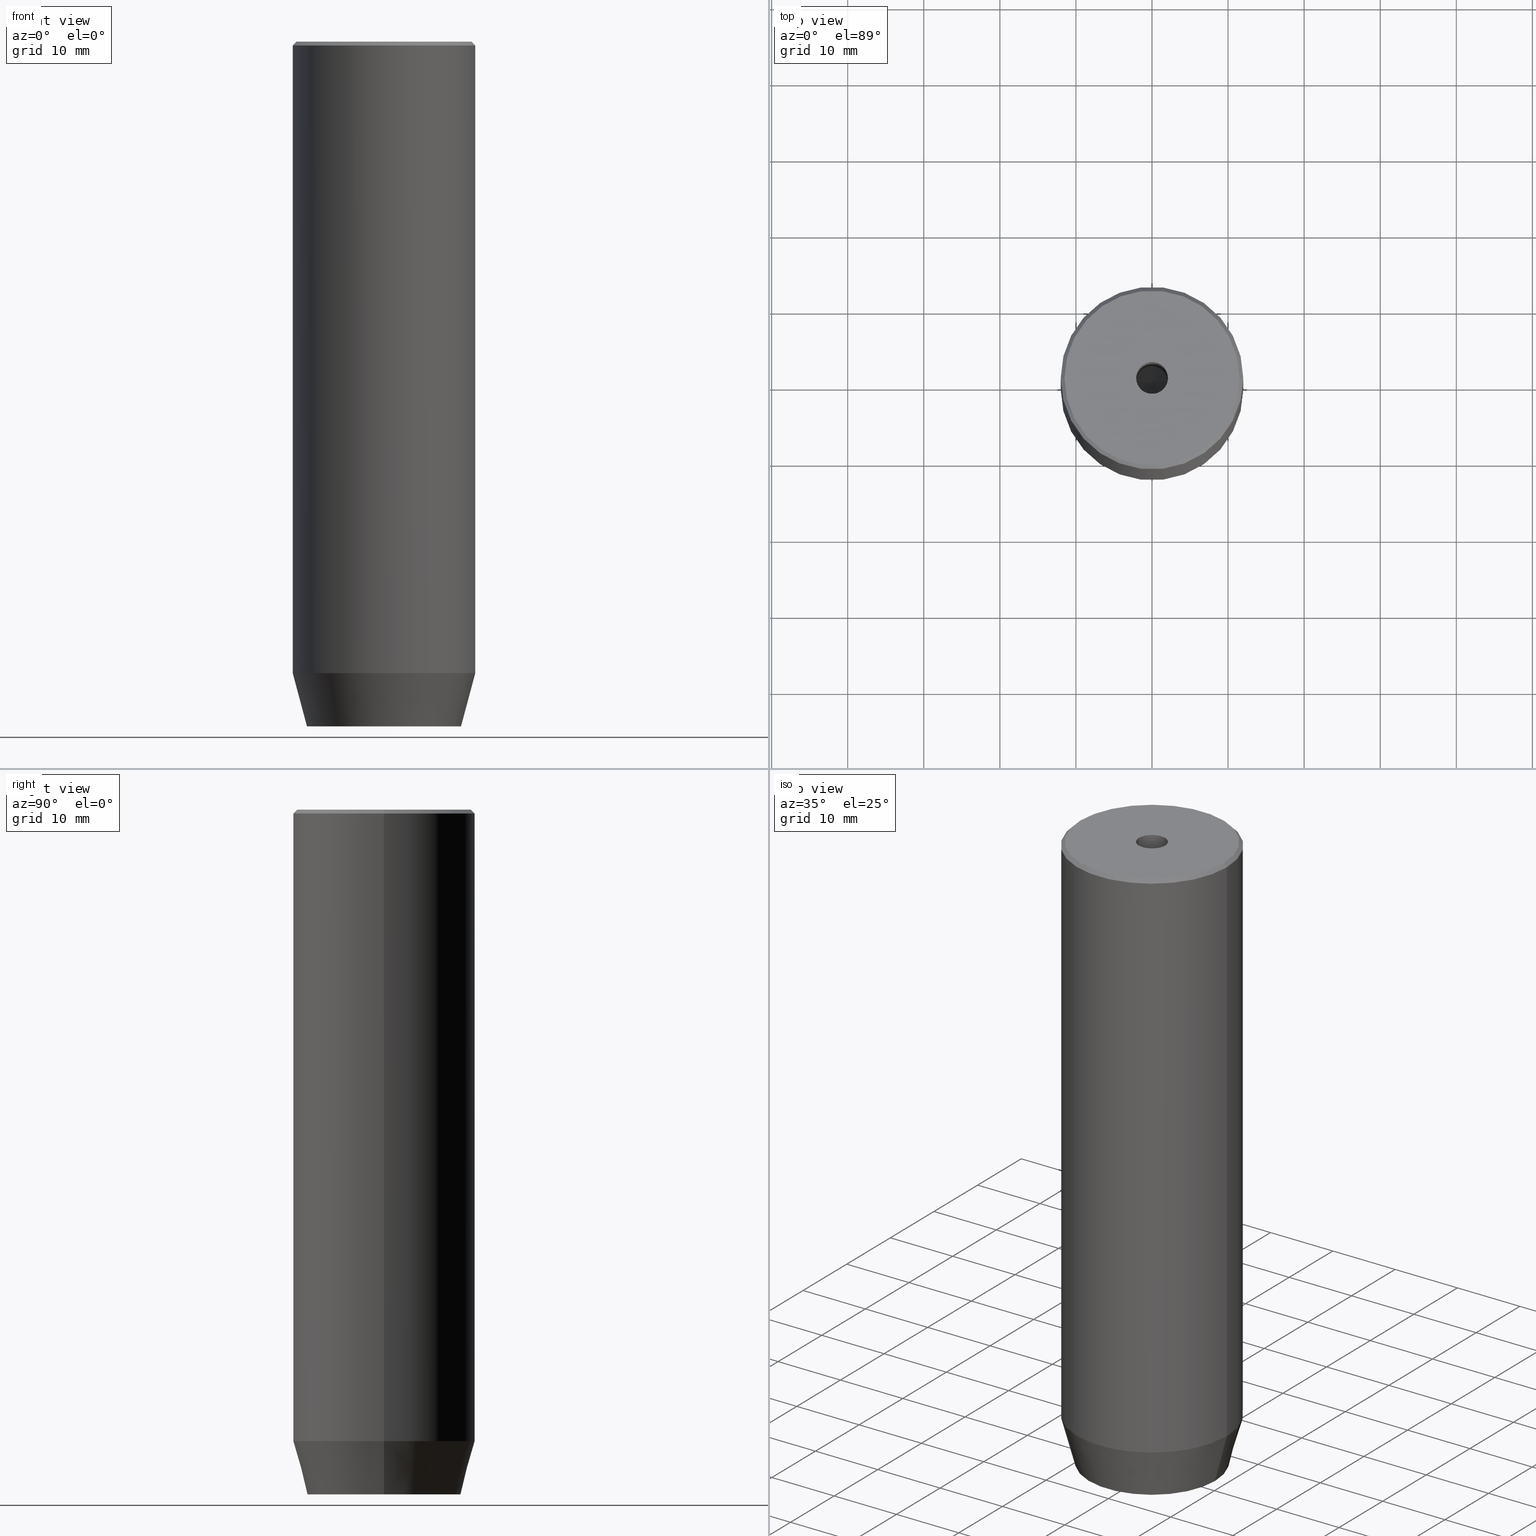
[diagram: canonical four-view strip — front | top / right | iso, engineering-drawing reading convention]
A machine part, canonical four-view strip (front | top / right | iso — engineering-drawing reading convention). The complete STEP part file that produces these views, byte-faithful:
ISO-10303-21;
HEADER;
FILE_DESCRIPTION (( 'STEP AP203' ),
    '1' );
FILE_NAME ('51a4.STEP',
    '2024-01-02T17:16:26',
    ( '' ),
    ( '' ),
    'SwSTEP 2.0',
    'SolidWorks 2019',
    '' );
FILE_SCHEMA (( 'CONFIG_CONTROL_DESIGN' ));
ENDSEC;

DATA;
#1 = DIRECTION ( 'NONE',  ( 1.000000000000000000, 0.000000000000000000, 0.000000000000000000 ) ) ;
#2 = EDGE_LOOP ( 'NONE', ( #536, #222, #529, #100 ) ) ;
#3 = CIRCLE ( 'NONE', #467, 11.49999999999999467 ) ;
#4 = VECTOR ( 'NONE', #300, 1000.000000000000000 ) ;
#5 = COORDINATED_UNIVERSAL_TIME_OFFSET ( 1, 0, .AHEAD. ) ;
#6 = ORIENTED_EDGE ( 'NONE', *, *, #497, .F. ) ;
#7 = ADVANCED_FACE ( 'NONE', ( #328, #155 ), #246, .T. ) ;
#8 = DIRECTION ( 'NONE',  ( 1.000000000000000000, 0.000000000000000000, 0.000000000000000000 ) ) ;
#9 = SECURITY_CLASSIFICATION_LEVEL ( 'unclassified' ) ;
#10 = VECTOR ( 'NONE', #115, 1000.000000000000114 ) ;
#11 = CONICAL_SURFACE ( 'NONE', #476, 12.00000000000000000, 0.2617993877991500740 ) ;
#12 = PERSON_AND_ORGANIZATION ( #371, #394 ) ;
#13 = EDGE_CURVE ( 'NONE', #583, #310, #120, .T. ) ;
#14 = CARTESIAN_POINT ( 'NONE',  ( 4.000000000000000000, -2.309401076758502480, -87.20000000000000284 ) ) ;
#15 = CARTESIAN_POINT ( 'NONE',  ( 4.000000000000000000, 0.000000000000000000, -90.00000000000000000 ) ) ;
#16 = DIRECTION ( 'NONE',  ( 0.000000000000000000, 0.000000000000000000, -1.000000000000000000 ) ) ;
#17 = CARTESIAN_POINT ( 'NONE',  ( -2.000000000000000000, 3.464101615137754830, -87.20000000000000284 ) ) ;
#18 = CIRCLE ( 'NONE', #284, 10.12435565298213547 ) ;
#19 = DIRECTION ( 'NONE',  ( -0.000000000000000000, -0.000000000000000000, 1.000000000000000000 ) ) ;
#20 = CARTESIAN_POINT ( 'NONE',  ( 0.000000000000000000, 10.12435565298213547, -90.00000000000000000 ) ) ;
#21 = CC_DESIGN_APPROVAL ( #280, ( #507 ) ) ;
#22 = EDGE_CURVE ( 'NONE', #234, #440, #547, .T. ) ;
#23 = FACE_OUTER_BOUND ( 'NONE', #443, .T. ) ;
#24 = ORIENTED_EDGE ( 'NONE', *, *, #466, .F. ) ;
#25 = DIRECTION ( 'NONE',  ( -1.000000000000000000, 0.000000000000000000, -0.000000000000000000 ) ) ;
#26 = CARTESIAN_POINT ( 'NONE',  ( 12.00000000000000000, 0.000000000000000000, 0.000000000000000000 ) ) ;
#27 = ORIENTED_EDGE ( 'NONE', *, *, #505, .F. ) ;
#28 = CARTESIAN_POINT ( 'NONE',  ( -10.12435565298213547, 1.354726066681111050E-15, -90.00000000000000000 ) ) ;
#29 =( NAMED_UNIT ( * ) SI_UNIT ( $, .STERADIAN. ) SOLID_ANGLE_UNIT ( ) );
#30 = AXIS2_PLACEMENT_3D ( 'NONE', #285, #470, #517 ) ;
#31 = ORIENTED_EDGE ( 'NONE', *, *, #381, .T. ) ;
#32 = EDGE_CURVE ( 'NONE', #432, #147, #149, .T. ) ;
#33 = DIRECTION ( 'NONE',  ( -0.000000000000000000, -0.000000000000000000, 1.000000000000000000 ) ) ;
#34 = LINE ( 'NONE', #581, #204 ) ;
#35 = LOCAL_TIME ( 18, 16, 26.00000000000000000, #499 ) ;
#36 = ORIENTED_EDGE ( 'NONE', *, *, #445, .F. ) ;
#37 = CARTESIAN_POINT ( 'NONE',  ( 2.099999999999994760, 0.000000000000000000, -30.00000000000000000 ) ) ;
#38 = FACE_OUTER_BOUND ( 'NONE', #323, .T. ) ;
#39 = EDGE_LOOP ( 'NONE', ( #526, #498, #96, #42, #451, #587 ) ) ;
#40 = FACE_OUTER_BOUND ( 'NONE', #78, .T. ) ;
#41 = CARTESIAN_POINT ( 'NONE',  ( 0.000000000000000000, 0.000000000000000000, -30.00000000000000000 ) ) ;
#42 = ORIENTED_EDGE ( 'NONE', *, *, #46, .F. ) ;
#43 = CIRCLE ( 'NONE', #317, 10.12435565298213547 ) ;
#44 = CARTESIAN_POINT ( 'NONE',  ( -4.000000000000000000, -2.309401076758503368, -87.20000000000000284 ) ) ;
#45 =( NAMED_UNIT ( * ) PLANE_ANGLE_UNIT ( ) SI_UNIT ( $, .RADIAN. ) );
#46 = EDGE_CURVE ( 'NONE', #310, #357, #335, .T. ) ;
#47 = EDGE_LOOP ( 'NONE', ( #545, #31, #189, #119 ) ) ;
#48 = CARTESIAN_POINT ( 'NONE',  ( -2.000000000000000888, -3.464101615137754386, -87.20000000000000284 ) ) ;
#49 = APPROVAL_DATE_TIME ( #453, #522 ) ;
#50 = ADVANCED_BREP_SHAPE_REPRESENTATION ( '51a4', ( #508, #123 ), #375 ) ;
#51 = ORIENTED_EDGE ( 'NONE', *, *, #347, .F. ) ;
#52 = COORDINATED_UNIVERSAL_TIME_OFFSET ( 1, 0, .AHEAD. ) ;
#53 = VERTEX_POINT ( 'NONE', #124 ) ;
#54 = CIRCLE ( 'NONE', #212, 2.099999999999998757 ) ;
#55 = EDGE_CURVE ( 'NONE', #365, #440, #419, .T. ) ;
#56 = AXIS2_PLACEMENT_3D ( 'NONE', #287, #552, #342 ) ;
#57 = APPROVAL_DATE_TIME ( #105, #280 ) ;
#58 = DIRECTION ( 'NONE',  ( -0.8660254037844384856, 0.5000000000000002220, 0.000000000000000000 ) ) ;
#59 = EDGE_CURVE ( 'NONE', #341, #234, #3, .T. ) ;
#60 = EDGE_CURVE ( 'NONE', #166, #579, #112, .T. ) ;
#61 = AXIS2_PLACEMENT_3D ( 'NONE', #279, #380, #553 ) ;
#62 = CIRCLE ( 'NONE', #30, 12.00000000000000000 ) ;
#63 = CARTESIAN_POINT ( 'NONE',  ( 4.336808689942017736E-16, -4.618802153517006737, -87.20000000000000284 ) ) ;
#64 = CARTESIAN_POINT ( 'NONE',  ( -12.00000000000000000, 1.469576158976823947E-15, -82.99999999999998579 ) ) ;
#65 = CYLINDRICAL_SURFACE ( 'NONE', #200, 12.00000000000000000 ) ;
#66 = CARTESIAN_POINT ( 'NONE',  ( 0.000000000000000000, 0.000000000000000000, 0.000000000000000000 ) ) ;
#67 = CARTESIAN_POINT ( 'NONE',  ( 0.000000000000000000, 0.000000000000000000, -90.00000000000000000 ) ) ;
#68 = EDGE_CURVE ( 'NONE', #53, #102, #504, .T. ) ;
#69 = VECTOR ( 'NONE', #519, 1000.000000000000000 ) ;
#70 = FACE_OUTER_BOUND ( 'NONE', #131, .T. ) ;
#71 = AXIS2_PLACEMENT_3D ( 'NONE', #223, #359, #535 ) ;
#72 = CARTESIAN_POINT ( 'NONE',  ( 2.099999999999996980, 0.000000000000000000, 0.000000000000000000 ) ) ;
#73 = EDGE_LOOP ( 'NONE', ( #36, #423, #393 ) ) ;
#74 = CC_DESIGN_APPROVAL ( #522, ( #544 ) ) ;
#75 = CC_DESIGN_PERSON_AND_ORGANIZATION_ASSIGNMENT ( #372, #143, ( #507 ) ) ;
#76 = DIRECTION ( 'NONE',  ( 0.000000000000000000, 0.000000000000000000, -1.000000000000000000 ) ) ;
#77 = PLANE ( 'NONE',  #555 ) ;
#78 = EDGE_LOOP ( 'NONE', ( #299, #256, #286, #368 ) ) ;
#79 = DIRECTION ( 'NONE',  ( -0.000000000000000000, -0.000000000000000000, 1.000000000000000000 ) ) ;
#80 = PLANE ( 'NONE',  #421 ) ;
#81 = EDGE_CURVE ( 'NONE', #147, #273, #208, .T. ) ;
#82 = ORIENTED_EDGE ( 'NONE', *, *, #534, .F. ) ;
#83 = DIRECTION ( 'NONE',  ( 1.000000000000000000, 0.000000000000000000, 0.000000000000000000 ) ) ;
#84 = DIRECTION ( 'NONE',  ( -0.000000000000000000, -0.000000000000000000, 1.000000000000000000 ) ) ;
#85 = AXIS2_PLACEMENT_3D ( 'NONE', #441, #79, #83 ) ;
#86 = CIRCLE ( 'NONE', #269, 2.099999999999994760 ) ;
#87 = ORIENTED_EDGE ( 'NONE', *, *, #548, .T. ) ;
#88 = DIRECTION ( 'NONE',  ( 1.000000000000000000, 0.000000000000000000, 0.000000000000000000 ) ) ;
#89 = DIRECTION ( 'NONE',  ( -0.000000000000000000, -0.000000000000000000, 1.000000000000000000 ) ) ;
#90 = VERTEX_POINT ( 'NONE', #64 ) ;
#91 = CARTESIAN_POINT ( 'NONE',  ( 2.000000000000000888, -3.464101615137754386, -87.20000000000000284 ) ) ;
#92 = ORIENTED_EDGE ( 'NONE', *, *, #324, .T. ) ;
#93 = DIRECTION ( 'NONE',  ( 1.000000000000000000, 0.000000000000000000, 0.000000000000000000 ) ) ;
#94 = ADVANCED_FACE ( 'NONE', ( #70 ), #387, .F. ) ;
#95 = CARTESIAN_POINT ( 'NONE',  ( 4.000000000000000000, 2.309401076758503368, -90.00000000000000000 ) ) ;
#96 = ORIENTED_EDGE ( 'NONE', *, *, #563, .F. ) ;
#97 = AXIS2_PLACEMENT_3D ( 'NONE', #573, #171, #350 ) ;
#98 = FACE_OUTER_BOUND ( 'NONE', #524, .T. ) ;
#99 = CALENDAR_DATE ( 2024, 2, 1 ) ;
#100 = ORIENTED_EDGE ( 'NONE', *, *, #144, .T. ) ;
#101 = SHAPE_DEFINITION_REPRESENTATION ( #319, #50 ) ;
#102 = VERTEX_POINT ( 'NONE', #244 ) ;
#103 = EDGE_CURVE ( 'NONE', #203, #53, #472, .T. ) ;
#104 = EDGE_LOOP ( 'NONE', ( #572, #488, #322, #493 ) ) ;
#105 = DATE_AND_TIME ( #109, #278 ) ;
#106 = DIRECTION ( 'NONE',  ( -0.000000000000000000, -0.000000000000000000, -1.000000000000000000 ) ) ;
#107 = PRODUCT_DEFINITION_FORMATION_WITH_SPECIFIED_SOURCE ( 'LIBOVOLN�', '', #307, .NOT_KNOWN. ) ;
#108 = EDGE_CURVE ( 'NONE', #447, #432, #429, .T. ) ;
#109 = CALENDAR_DATE ( 2024, 2, 1 ) ;
#110 = APPLICATION_CONTEXT ( 'configuration controlled 3d designs of mechanical parts and assemblies' ) ;
#111 = DIRECTION ( 'NONE',  ( -1.000000000000000000, 0.000000000000000000, -0.000000000000000000 ) ) ;
#112 = CIRCLE ( 'NONE', #567, 2.099999999999998757 ) ;
#113 = VECTOR ( 'NONE', #175, 1000.000000000000000 ) ;
#114 = CARTESIAN_POINT ( 'NONE',  ( -2.099999999999994760, 2.571758278209435054E-16, -30.00000000000000000 ) ) ;
#115 = DIRECTION ( 'NONE',  ( -0.8660254037844384856, -0.5000000000000002220, 0.000000000000000000 ) ) ;
#116 = CARTESIAN_POINT ( 'NONE',  ( 11.49999999999999467, 1.408343819019455584E-15, 0.000000000000000000 ) ) ;
#117 = DIRECTION ( 'NONE',  ( -0.8660254037844384856, -0.5000000000000002220, 0.000000000000000000 ) ) ;
#118 = LINE ( 'NONE', #427, #568 ) ;
#119 = ORIENTED_EDGE ( 'NONE', *, *, #510, .F. ) ;
#120 = LINE ( 'NONE', #15, #69 ) ;
#121 = CIRCLE ( 'NONE', #448, 12.00000000000000000 ) ;
#122 = LINE ( 'NONE', #72, #240 ) ;
#123 = AXIS2_PLACEMENT_3D ( 'NONE', #321, #360, #277 ) ;
#124 = CARTESIAN_POINT ( 'NONE',  ( 0.000000000000000000, 4.618802153517006737, -87.20000000000000284 ) ) ;
#125 = EDGE_CURVE ( 'NONE', #219, #166, #288, .T. ) ;
#126 = APPLICATION_PROTOCOL_DEFINITION ( 'international standard', 'config_control_design', 1994, #565 ) ;
#127 = CARTESIAN_POINT ( 'NONE',  ( -12.00000000000000000, 1.469576158976823947E-15, -82.99999999999998579 ) ) ;
#128 = CARTESIAN_POINT ( 'NONE',  ( 0.000000000000000000, 0.000000000000000000, -0.5000000000000056621 ) ) ;
#129 = CARTESIAN_POINT ( 'NONE',  ( 0.000000000000000000, 0.000000000000000000, -82.99999999999998579 ) ) ;
#130 = CIRCLE ( 'NONE', #461, 11.49999999999999467 ) ;
#131 = EDGE_LOOP ( 'NONE', ( #182, #457, #163, #501 ) ) ;
#132 = CARTESIAN_POINT ( 'NONE',  ( 0.000000000000000000, 0.000000000000000000, -30.00000000000000000 ) ) ;
#133 = DIRECTION ( 'NONE',  ( 1.000000000000000000, 0.000000000000000000, 0.000000000000000000 ) ) ;
#134 = EDGE_LOOP ( 'NONE', ( #404, #205, #146, #87 ) ) ;
#135 = CARTESIAN_POINT ( 'NONE',  ( 2.000000000000000444, 3.464101615137754386, -87.20000000000000284 ) ) ;
#136 = LINE ( 'NONE', #215, #113 ) ;
#137 = ORIENTED_EDGE ( 'NONE', *, *, #60, .F. ) ;
#138 = EDGE_CURVE ( 'NONE', #219, #229, #186, .T. ) ;
#139 = DIRECTION ( 'NONE',  ( 0.8660254037844384856, -0.5000000000000002220, 0.000000000000000000 ) ) ;
#140 = APPROVAL_STATUS ( 'not_yet_approved' ) ;
#141 = EDGE_LOOP ( 'NONE', ( #216, #275, #318, #353 ) ) ;
#142 = VECTOR ( 'NONE', #483, 1000.000000000000000 ) ;
#143 = PERSON_AND_ORGANIZATION_ROLE ( 'creator' ) ;
#144 = EDGE_CURVE ( 'NONE', #579, #166, #54, .T. ) ;
#145 = UNCERTAINTY_MEASURE_WITH_UNIT (LENGTH_MEASURE( 1.000000000000000082E-05 ), #356, 'distance_accuracy_value', 'NONE');
#146 = ORIENTED_EDGE ( 'NONE', *, *, #108, .F. ) ;
#147 = VERTEX_POINT ( 'NONE', #44 ) ;
#148 = PERSON_AND_ORGANIZATION ( #371, #394 ) ;
#149 = LINE ( 'NONE', #293, #302 ) ;
#150 = VECTOR ( 'NONE', #424, 1000.000000000000000 ) ;
#151 = ADVANCED_FACE ( 'NONE', ( #577 ), #509, .F. ) ;
#152 = FACE_OUTER_BOUND ( 'NONE', #232, .T. ) ;
#153 = AXIS2_PLACEMENT_3D ( 'NONE', #20, #564, #25 ) ;
#154 = AXIS2_PLACEMENT_3D ( 'NONE', #575, #221, #571 ) ;
#155 = FACE_OUTER_BOUND ( 'NONE', #518, .T. ) ;
#156 = EDGE_CURVE ( 'NONE', #273, #478, #585, .T. ) ;
#157 = CARTESIAN_POINT ( 'NONE',  ( 4.000000000000000000, 0.000000000000000000, -87.20000000000000284 ) ) ;
#158 = DIRECTION ( 'NONE',  ( -0.000000000000000000, -0.000000000000000000, -1.000000000000000000 ) ) ;
#159 = CARTESIAN_POINT ( 'NONE',  ( 0.000000000000000000, 0.000000000000000000, 0.000000000000000000 ) ) ;
#160 = ORIENTED_EDGE ( 'NONE', *, *, #243, .F. ) ;
#161 = DIRECTION ( 'NONE',  ( 0.8660254037844387076, 0.5000000000000001110, 0.000000000000000000 ) ) ;
#162 = EDGE_CURVE ( 'NONE', #295, #583, #267, .T. ) ;
#163 = ORIENTED_EDGE ( 'NONE', *, *, #230, .F. ) ;
#164 = VECTOR ( 'NONE', #206, 1000.000000000000000 ) ;
#165 = LINE ( 'NONE', #157, #364 ) ;
#166 = VERTEX_POINT ( 'NONE', #580 ) ;
#167 = CC_DESIGN_DATE_AND_TIME_ASSIGNMENT ( #546, #496, ( #544 ) ) ;
#168 = LOCAL_TIME ( 18, 16, 26.00000000000000000, #52 ) ;
#169 = CARTESIAN_POINT ( 'NONE',  ( -4.000000000000000000, 2.309401076758503368, -87.20000000000000284 ) ) ;
#170 = FACE_BOUND ( 'NONE', #437, .T. ) ;
#171 = DIRECTION ( 'NONE',  ( 1.000000000000000000, 0.000000000000000000, -0.000000000000000000 ) ) ;
#172 = DIRECTION ( 'NONE',  ( -1.000000000000000000, 0.000000000000000000, 0.000000000000000000 ) ) ;
#173 = EDGE_LOOP ( 'NONE', ( #51, #24, #385, #491 ) ) ;
#174 = DIRECTION ( 'NONE',  ( 1.000000000000000000, 0.000000000000000000, 0.000000000000000000 ) ) ;
#175 = DIRECTION ( 'NONE',  ( 0.000000000000000000, 1.000000000000000000, 0.000000000000000000 ) ) ;
#176 = ORIENTED_EDGE ( 'NONE', *, *, #125, .T. ) ;
#177 = FACE_OUTER_BOUND ( 'NONE', #134, .T. ) ;
#178 = CARTESIAN_POINT ( 'NONE',  ( 2.099999999999998757, 0.000000000000000000, -1.990051048614449116E-16 ) ) ;
#179 = ORIENTED_EDGE ( 'NONE', *, *, #156, .T. ) ;
#180 = CARTESIAN_POINT ( 'NONE',  ( 2.000000000000000444, 3.464101615137754386, -90.00000000000000000 ) ) ;
#181 = CARTESIAN_POINT ( 'NONE',  ( -2.000000000000000888, -3.464101615137754386, -90.00000000000000000 ) ) ;
#182 = ORIENTED_EDGE ( 'NONE', *, *, #195, .T. ) ;
#183 = ADVANCED_FACE ( 'NONE', ( #177 ), #444, .F. ) ;
#184 = DIRECTION ( 'NONE',  ( -0.000000000000000000, -0.000000000000000000, 1.000000000000000000 ) ) ;
#185 = CALENDAR_DATE ( 2024, 2, 1 ) ;
#186 = CIRCLE ( 'NONE', #333, 2.099999999999994760 ) ;
#187 = ORIENTED_EDGE ( 'NONE', *, *, #243, .T. ) ;
#188 = LOCAL_TIME ( 18, 16, 26.00000000000000000, #325 ) ;
#189 = ORIENTED_EDGE ( 'NONE', *, *, #497, .T. ) ;
#190 = APPROVAL_STATUS ( 'not_yet_approved' ) ;
#191 = VERTEX_POINT ( 'NONE', #28 ) ;
#192 = APPROVAL_STATUS ( 'not_yet_approved' ) ;
#193 = ADVANCED_FACE ( 'NONE', ( #40 ), #327, .T. ) ;
#194 = LINE ( 'NONE', #114, #150 ) ;
#195 = EDGE_CURVE ( 'NONE', #102, #583, #486, .T. ) ;
#196 = DIRECTION ( 'NONE',  ( -0.7071067811865474617, 0.000000000000000000, -0.7071067811865474617 ) ) ;
#197 = CARTESIAN_POINT ( 'NONE',  ( 4.000000000000000000, -2.309401076758502480, -90.00000000000000000 ) ) ;
#198 = AXIS2_PLACEMENT_3D ( 'NONE', #91, #265, #525 ) ;
#199 = VECTOR ( 'NONE', #196, 1000.000000000000114 ) ;
#200 = AXIS2_PLACEMENT_3D ( 'NONE', #159, #19, #515 ) ;
#201 = DIRECTION ( 'NONE',  ( 0.8660254037844387076, 0.5000000000000001110, 0.000000000000000000 ) ) ;
#202 = DIRECTION ( 'NONE',  ( -0.000000000000000000, -0.000000000000000000, 1.000000000000000000 ) ) ;
#203 = VERTEX_POINT ( 'NONE', #481 ) ;
#204 = VECTOR ( 'NONE', #392, 1000.000000000000000 ) ;
#205 = ORIENTED_EDGE ( 'NONE', *, *, #434, .F. ) ;
#206 = DIRECTION ( 'NONE',  ( -0.000000000000000000, -0.000000000000000000, 1.000000000000000000 ) ) ;
#207 = ORIENTED_EDGE ( 'NONE', *, *, #138, .F. ) ;
#208 = LINE ( 'NONE', #377, #485 ) ;
#209 = DIRECTION ( 'NONE',  ( -1.000000000000000000, 0.000000000000000000, 0.000000000000000000 ) ) ;
#210 = ORIENTED_EDGE ( 'NONE', *, *, #505, .T. ) ;
#211 = CC_DESIGN_PERSON_AND_ORGANIZATION_ASSIGNMENT ( #12, #410, ( #544 ) ) ;
#212 = AXIS2_PLACEMENT_3D ( 'NONE', #527, #33, #93 ) ;
#213 = CARTESIAN_POINT ( 'NONE',  ( -2.099999999999994760, 2.571758278209435054E-16, -30.00000000000000000 ) ) ;
#214 = CIRCLE ( 'NONE', #154, 12.00000000000000000 ) ;
#215 = CARTESIAN_POINT ( 'NONE',  ( -4.000000000000000000, 0.000000000000000000, -87.20000000000000284 ) ) ;
#216 = ORIENTED_EDGE ( 'NONE', *, *, #455, .T. ) ;
#217 = DIRECTION ( 'NONE',  ( -0.000000000000000000, -0.000000000000000000, -1.000000000000000000 ) ) ;
#218 = LINE ( 'NONE', #450, #511 ) ;
#219 = VERTEX_POINT ( 'NONE', #213 ) ;
#220 = CARTESIAN_POINT ( 'NONE',  ( 0.000000000000000000, 0.000000000000000000, -90.00000000000000000 ) ) ;
#221 = DIRECTION ( 'NONE',  ( -0.000000000000000000, -0.000000000000000000, 1.000000000000000000 ) ) ;
#222 = ORIENTED_EDGE ( 'NONE', *, *, #282, .F. ) ;
#223 = CARTESIAN_POINT ( 'NONE',  ( 0.000000000000000000, 0.000000000000000000, 0.000000000000000000 ) ) ;
#224 = CYLINDRICAL_SURFACE ( 'NONE', #383, 2.099999999999996980 ) ;
#225 = VECTOR ( 'NONE', #386, 1000.000000000000114 ) ;
#226 = ORIENTED_EDGE ( 'NONE', *, *, #103, .T. ) ;
#227 = CARTESIAN_POINT ( 'NONE',  ( 0.000000000000000000, 0.000000000000000000, -30.00000000000000000 ) ) ;
#228 = CARTESIAN_POINT ( 'NONE',  ( 0.000000000000000000, 0.000000000000000000, 0.000000000000000000 ) ) ;
#229 = VERTEX_POINT ( 'NONE', #37 ) ;
#230 = EDGE_CURVE ( 'NONE', #53, #295, #355, .T. ) ;
#231 = DIRECTION ( 'NONE',  ( 1.000000000000000000, 0.000000000000000000, 0.000000000000000000 ) ) ;
#232 = EDGE_LOOP ( 'NONE', ( #179, #160, #27, #384 ) ) ;
#233 = VECTOR ( 'NONE', #117, 1000.000000000000114 ) ;
#234 = VERTEX_POINT ( 'NONE', #352 ) ;
#235 = AXIS2_PLACEMENT_3D ( 'NONE', #249, #209, #253 ) ;
#236 = CARTESIAN_POINT ( 'NONE',  ( 0.000000000000000000, 0.000000000000000000, -0.5000000000000056621 ) ) ;
#237 = PERSON_AND_ORGANIZATION ( #371, #394 ) ;
#238 = ADVANCED_FACE ( 'NONE', ( #311 ), #396, .T. ) ;
#239 = APPROVAL_ROLE ( '' ) ;
#240 = VECTOR ( 'NONE', #469, 1000.000000000000000 ) ;
#241 = LINE ( 'NONE', #336, #379 ) ;
#242 = VECTOR ( 'NONE', #446, 1000.000000000000114 ) ;
#243 = EDGE_CURVE ( 'NONE', #203, #478, #297, .T. ) ;
#244 = CARTESIAN_POINT ( 'NONE',  ( 0.000000000000000000, 4.618802153517006737, -90.00000000000000000 ) ) ;
#245 = CARTESIAN_POINT ( 'NONE',  ( 0.000000000000000000, 0.000000000000000000, -87.20000000000000284 ) ) ;
#246 = PLANE ( 'NONE',  #153 ) ;
#247 = LINE ( 'NONE', #388, #343 ) ;
#248 = ORIENTED_EDGE ( 'NONE', *, *, #395, .T. ) ;
#249 = CARTESIAN_POINT ( 'NONE',  ( -4.000000000000000000, 0.000000000000000000, -87.20000000000000284 ) ) ;
#250 = CONICAL_SURFACE ( 'NONE', #366, 2.099999999999994760, 1.029744258676652535 ) ;
#251 = CARTESIAN_POINT ( 'NONE',  ( 0.000000000000000000, 0.000000000000000000, -1.990051048614449116E-16 ) ) ;
#252 = EDGE_CURVE ( 'NONE', #191, #90, #570, .T. ) ;
#253 = DIRECTION ( 'NONE',  ( 0.000000000000000000, 0.000000000000000000, 1.000000000000000000 ) ) ;
#254 = DIRECTION ( 'NONE',  ( 0.8660254037844385966, -0.5000000000000001110, 0.000000000000000000 ) ) ;
#255 = CARTESIAN_POINT ( 'NONE',  ( 10.12435565298213547, 0.000000000000000000, -90.00000000000000000 ) ) ;
#256 = ORIENTED_EDGE ( 'NONE', *, *, #347, .T. ) ;
#257 = PLANE ( 'NONE',  #97 ) ;
#258 = AXIS2_PLACEMENT_3D ( 'NONE', #298, #586, #172 ) ;
#259 = DIRECTION ( 'NONE',  ( 1.000000000000000000, 0.000000000000000000, 0.000000000000000000 ) ) ;
#260 = ORIENTED_EDGE ( 'NONE', *, *, #510, .T. ) ;
#261 = ADVANCED_FACE ( 'NONE', ( #531 ), #257, .F. ) ;
#262 = LOCAL_TIME ( 18, 16, 26.00000000000000000, #281 ) ;
#263 = CARTESIAN_POINT ( 'NONE',  ( -4.000000000000000000, -2.309401076758503368, -90.00000000000000000 ) ) ;
#264 = FACE_OUTER_BOUND ( 'NONE', #2, .T. ) ;
#265 = DIRECTION ( 'NONE',  ( 0.5000000000000003331, -0.8660254037844385966, 0.000000000000000000 ) ) ;
#266 = ORIENTED_EDGE ( 'NONE', *, *, #108, .T. ) ;
#267 = LINE ( 'NONE', #492, #458 ) ;
#268 = EDGE_CURVE ( 'NONE', #440, #365, #121, .T. ) ;
#269 = AXIS2_PLACEMENT_3D ( 'NONE', #132, #271, #1 ) ;
#270 = ORIENTED_EDGE ( 'NONE', *, *, #144, .F. ) ;
#271 = DIRECTION ( 'NONE',  ( -0.000000000000000000, -0.000000000000000000, 1.000000000000000000 ) ) ;
#272 = DATE_AND_TIME ( #418, #168 ) ;
#273 = VERTEX_POINT ( 'NONE', #263 ) ;
#274 = ORIENTED_EDGE ( 'NONE', *, *, #103, .F. ) ;
#275 = ORIENTED_EDGE ( 'NONE', *, *, #534, .T. ) ;
#276 = EDGE_CURVE ( 'NONE', #569, #191, #18, .T. ) ;
#277 = DIRECTION ( 'NONE',  ( 1.000000000000000000, 0.000000000000000000, 0.000000000000000000 ) ) ;
#278 = LOCAL_TIME ( 18, 16, 26.00000000000000000, #5 ) ;
#279 = CARTESIAN_POINT ( 'NONE',  ( 2.000000000000000444, 3.464101615137754386, -87.20000000000000284 ) ) ;
#280 = APPROVAL ( #140, 'NEUR�EN�' ) ;
#281 = COORDINATED_UNIVERSAL_TIME_OFFSET ( 1, 0, .AHEAD. ) ;
#282 = EDGE_CURVE ( 'NONE', #229, #219, #86, .T. ) ;
#283 = DIRECTION ( 'NONE',  ( 0.000000000000000000, -1.000000000000000000, 0.000000000000000000 ) ) ;
#284 = AXIS2_PLACEMENT_3D ( 'NONE', #220, #398, #174 ) ;
#285 = CARTESIAN_POINT ( 'NONE',  ( 0.000000000000000000, 0.000000000000000000, -82.99999999999998579 ) ) ;
#286 = ORIENTED_EDGE ( 'NONE', *, *, #268, .F. ) ;
#287 = CARTESIAN_POINT ( 'NONE',  ( 0.000000000000000000, 0.000000000000000000, 0.000000000000000000 ) ) ;
#288 = LINE ( 'NONE', #438, #554 ) ;
#289 = CARTESIAN_POINT ( 'NONE',  ( 0.000000000000000000, 0.000000000000000000, 0.000000000000000000 ) ) ;
#290 = ORIENTED_EDGE ( 'NONE', *, *, #425, .F. ) ;
#291 = AXIS2_PLACEMENT_3D ( 'NONE', #378, #556, #433 ) ;
#292 = ADVANCED_FACE ( 'NONE', ( #98 ), #11, .T. ) ;
#293 = CARTESIAN_POINT ( 'NONE',  ( -2.000000000000000888, -3.464101615137754386, -87.20000000000000284 ) ) ;
#294 = LINE ( 'NONE', #116, #225 ) ;
#295 = VERTEX_POINT ( 'NONE', #313 ) ;
#296 = APPROVAL ( #190, 'NEUR�EN�' ) ;
#297 = LINE ( 'NONE', #169, #334 ) ;
#298 = CARTESIAN_POINT ( 'NONE',  ( 0.000000000000000000, 0.000000000000000000, 0.000000000000000000 ) ) ;
#299 = ORIENTED_EDGE ( 'NONE', *, *, #59, .F. ) ;
#300 = DIRECTION ( 'NONE',  ( -0.2588190451025213501, 3.169619151431772337E-17, 0.9659258262890680902 ) ) ;
#301 = ADVANCED_FACE ( 'NONE', ( #409 ), #495, .F. ) ;
#302 = VECTOR ( 'NONE', #58, 1000.000000000000114 ) ;
#303 = DIRECTION ( 'NONE',  ( 0.000000000000000000, 0.000000000000000000, -1.000000000000000000 ) ) ;
#304 = VECTOR ( 'NONE', #254, 1000.000000000000000 ) ;
#305 = DIRECTION ( 'NONE',  ( -0.000000000000000000, -0.000000000000000000, 1.000000000000000000 ) ) ;
#306 = ORIENTED_EDGE ( 'NONE', *, *, #276, .T. ) ;
#307 = PRODUCT ( '51a4', '51a4', '', ( #538 ) ) ;
#308 = DIRECTION ( 'NONE',  ( 0.000000000000000000, 1.000000000000000000, 0.000000000000000000 ) ) ;
#309 = CARTESIAN_POINT ( 'NONE',  ( -4.000000000000000000, 2.309401076758503368, -90.00000000000000000 ) ) ;
#310 = VERTEX_POINT ( 'NONE', #197 ) ;
#311 = FACE_OUTER_BOUND ( 'NONE', #141, .T. ) ;
#312 = ORIENTED_EDGE ( 'NONE', *, *, #230, .T. ) ;
#313 = CARTESIAN_POINT ( 'NONE',  ( 4.000000000000000000, 2.309401076758503368, -87.20000000000000284 ) ) ;
#314 = CC_DESIGN_PERSON_AND_ORGANIZATION_ASSIGNMENT ( #550, #503, ( #107 ) ) ;
#315 = VECTOR ( 'NONE', #158, 1000.000000000000000 ) ;
#316 = CALENDAR_DATE ( 2024, 2, 1 ) ;
#317 = AXIS2_PLACEMENT_3D ( 'NONE', #67, #202, #566 ) ;
#318 = ORIENTED_EDGE ( 'NONE', *, *, #268, .T. ) ;
#319 = PRODUCT_DEFINITION_SHAPE ( 'NONE', 'NONE',  #507 ) ;
#320 = CC_DESIGN_APPROVAL ( #296, ( #107 ) ) ;
#321 = CARTESIAN_POINT ( 'NONE',  ( 0.000000000000000000, 0.000000000000000000, 0.000000000000000000 ) ) ;
#322 = ORIENTED_EDGE ( 'NONE', *, *, #32, .F. ) ;
#323 = EDGE_LOOP ( 'NONE', ( #539, #389 ) ) ;
#324 = EDGE_CURVE ( 'NONE', #478, #102, #247, .T. ) ;
#325 = COORDINATED_UNIVERSAL_TIME_OFFSET ( 1, 0, .AHEAD. ) ;
#326 = CLOSED_SHELL ( 'NONE', ( #403, #574, #193, #292, #238, #7, #551, #331, #471, #523, #374, #358, #301, #183, #261, #94, #367, #151, #584 ) ) ;
#327 = CONICAL_SURFACE ( 'NONE', #71, 11.49999999999999467, 0.7853981633974482790 ) ;
#328 = FACE_BOUND ( 'NONE', #39, .T. ) ;
#329 = APPROVAL_ROLE ( '' ) ;
#330 = APPROVAL_PERSON_ORGANIZATION ( #237, #296, #506 ) ;
#331 = ADVANCED_FACE ( 'NONE', ( #561 ), #65, .T. ) ;
#332 = CYLINDRICAL_SURFACE ( 'NONE', #56, 2.099999999999996980 ) ;
#333 = AXIS2_PLACEMENT_3D ( 'NONE', #227, #435, #489 ) ;
#334 = VECTOR ( 'NONE', #391, 1000.000000000000000 ) ;
#335 = LINE ( 'NONE', #560, #10 ) ;
#336 = CARTESIAN_POINT ( 'NONE',  ( 4.336808689942017736E-16, -4.618802153517006737, -87.20000000000000284 ) ) ;
#337 = CARTESIAN_POINT ( 'NONE',  ( 2.000000000000000888, -3.464101615137754386, -87.20000000000000284 ) ) ;
#338 = CARTESIAN_POINT ( 'NONE',  ( 12.00000000000000000, 0.000000000000000000, -0.5000000000000056621 ) ) ;
#339 = ORIENTED_EDGE ( 'NONE', *, *, #455, .F. ) ;
#340 = EDGE_CURVE ( 'NONE', #513, #219, #194, .T. ) ;
#341 = VERTEX_POINT ( 'NONE', #345 ) ;
#342 = DIRECTION ( 'NONE',  ( 1.000000000000000000, 0.000000000000000000, 0.000000000000000000 ) ) ;
#343 = VECTOR ( 'NONE', #161, 999.9999999999998863 ) ;
#344 = ORIENTED_EDGE ( 'NONE', *, *, #68, .F. ) ;
#345 = CARTESIAN_POINT ( 'NONE',  ( 11.49999999999999467, 1.438959988998139766E-15, 0.000000000000000000 ) ) ;
#346 = CARTESIAN_POINT ( 'NONE',  ( -4.000000000000000000, 0.000000000000000000, -90.00000000000000000 ) ) ;
#347 = EDGE_CURVE ( 'NONE', #341, #365, #294, .T. ) ;
#348 = DIRECTION ( 'NONE',  ( 1.000000000000000000, 0.000000000000000000, 0.000000000000000000 ) ) ;
#349 = EDGE_LOOP ( 'NONE', ( #82, #260, #248, #482 ) ) ;
#350 = DIRECTION ( 'NONE',  ( -0.000000000000000000, 0.000000000000000000, -1.000000000000000000 ) ) ;
#351 = CARTESIAN_POINT ( 'NONE',  ( 0.000000000000000000, 0.000000000000000000, 0.000000000000000000 ) ) ;
#352 = CARTESIAN_POINT ( 'NONE',  ( -11.49999999999999467, 0.000000000000000000, 0.000000000000000000 ) ) ;
#353 = ORIENTED_EDGE ( 'NONE', *, *, #395, .F. ) ;
#354 = CC_DESIGN_SECURITY_CLASSIFICATION ( #544, ( #107 ) ) ;
#355 = LINE ( 'NONE', #135, #304 ) ;
#356 =( LENGTH_UNIT ( ) NAMED_UNIT ( * ) SI_UNIT ( .MILLI., .METRE. ) );
#357 = VERTEX_POINT ( 'NONE', #479 ) ;
#358 = ADVANCED_FACE ( 'NONE', ( #152 ), #473, .F. ) ;
#359 = DIRECTION ( 'NONE',  ( 0.000000000000000000, 0.000000000000000000, -1.000000000000000000 ) ) ;
#360 = DIRECTION ( 'NONE',  ( 0.000000000000000000, 0.000000000000000000, 1.000000000000000000 ) ) ;
#361 = ORIENTED_EDGE ( 'NONE', *, *, #445, .T. ) ;
#362 = DIRECTION ( 'NONE',  ( -0.5000000000000003331, -0.8660254037844385966, 0.000000000000000000 ) ) ;
#363 = VECTOR ( 'NONE', #201, 999.9999999999998863 ) ;
#364 = VECTOR ( 'NONE', #283, 1000.000000000000000 ) ;
#365 = VERTEX_POINT ( 'NONE', #338 ) ;
#366 = AXIS2_PLACEMENT_3D ( 'NONE', #41, #436, #348 ) ;
#367 = ADVANCED_FACE ( 'NONE', ( #23 ), #77, .T. ) ;
#368 = ORIENTED_EDGE ( 'NONE', *, *, #22, .F. ) ;
#369 = PERSON_AND_ORGANIZATION_ROLE ( 'creator' ) ;
#370 = DIRECTION ( 'NONE',  ( 1.000000000000000000, 0.000000000000000000, 0.000000000000000000 ) ) ;
#371 = PERSON ( 'NEUR�EN�', 'NEUR�EN�', 'NEUR�EN�', ('NEUR�EN�'), ('NEUR�EN�'), ('NEUR�EN�') ) ;
#372 = PERSON_AND_ORGANIZATION ( #371, #394 ) ;
#373 = AXIS2_PLACEMENT_3D ( 'NONE', #449, #405, #537 ) ;
#374 = ADVANCED_FACE ( 'NONE', ( #520 ), #376, .F. ) ;
#375 =( GEOMETRIC_REPRESENTATION_CONTEXT ( 3 ) GLOBAL_UNCERTAINTY_ASSIGNED_CONTEXT ( ( #145 ) ) GLOBAL_UNIT_ASSIGNED_CONTEXT ( ( #356, #45, #29 ) ) REPRESENTATION_CONTEXT ( 'NONE', 'WORKASPACE' ) );
#376 = PLANE ( 'NONE',  #291 ) ;
#377 = CARTESIAN_POINT ( 'NONE',  ( -4.000000000000000000, -2.309401076758503368, -87.20000000000000284 ) ) ;
#378 = CARTESIAN_POINT ( 'NONE',  ( -2.000000000000000000, 3.464101615137754830, -87.20000000000000284 ) ) ;
#379 = VECTOR ( 'NONE', #430, 1000.000000000000000 ) ;
#380 = DIRECTION ( 'NONE',  ( 0.5000000000000001110, 0.8660254037844385966, -0.000000000000000000 ) ) ;
#381 = EDGE_CURVE ( 'NONE', #191, #569, #43, .T. ) ;
#382 = FACE_OUTER_BOUND ( 'NONE', #543, .T. ) ;
#383 = AXIS2_PLACEMENT_3D ( 'NONE', #228, #399, #578 ) ;
#384 = ORIENTED_EDGE ( 'NONE', *, *, #81, .T. ) ;
#385 = ORIENTED_EDGE ( 'NONE', *, *, #22, .T. ) ;
#386 = DIRECTION ( 'NONE',  ( 0.7071067811865474617, 8.659560562354932858E-17, -0.7071067811865474617 ) ) ;
#387 = PLANE ( 'NONE',  #61 ) ;
#388 = CARTESIAN_POINT ( 'NONE',  ( -2.000000000000000000, 3.464101615137754830, -90.00000000000000000 ) ) ;
#389 = ORIENTED_EDGE ( 'NONE', *, *, #59, .T. ) ;
#390 = EDGE_CURVE ( 'NONE', #295, #447, #165, .T. ) ;
#391 = DIRECTION ( 'NONE',  ( -0.000000000000000000, -0.000000000000000000, -1.000000000000000000 ) ) ;
#392 = DIRECTION ( 'NONE',  ( -0.000000000000000000, -0.000000000000000000, -1.000000000000000000 ) ) ;
#393 = ORIENTED_EDGE ( 'NONE', *, *, #138, .T. ) ;
#394 = ORGANIZATION ( 'NEUR�EN�', 'NEUR�EN�', '' ) ;
#395 = EDGE_CURVE ( 'NONE', #407, #365, #475, .T. ) ;
#396 = CYLINDRICAL_SURFACE ( 'NONE', #373, 12.00000000000000000 ) ;
#397 = CARTESIAN_POINT ( 'NONE',  ( -7.656934449090954900E-15, 0.000000000000000000, -31.26180729995787289 ) ) ;
#398 = DIRECTION ( 'NONE',  ( -0.000000000000000000, -0.000000000000000000, 1.000000000000000000 ) ) ;
#399 = DIRECTION ( 'NONE',  ( -0.000000000000000000, -0.000000000000000000, 1.000000000000000000 ) ) ;
#400 = ORIENTED_EDGE ( 'NONE', *, *, #282, .T. ) ;
#401 = DIRECTION ( 'NONE',  ( -0.000000000000000000, -0.000000000000000000, 1.000000000000000000 ) ) ;
#402 = DIRECTION ( 'NONE',  ( 0.000000000000000000, -0.000000000000000000, 1.000000000000000000 ) ) ;
#403 = ADVANCED_FACE ( 'NONE', ( #382 ), #332, .F. ) ;
#404 = ORIENTED_EDGE ( 'NONE', *, *, #46, .T. ) ;
#405 = DIRECTION ( 'NONE',  ( -0.000000000000000000, -0.000000000000000000, 1.000000000000000000 ) ) ;
#406 = CARTESIAN_POINT ( 'NONE',  ( 12.00000000000000000, 0.000000000000000000, -82.99999999999998579 ) ) ;
#407 = VERTEX_POINT ( 'NONE', #512 ) ;
#408 = CC_DESIGN_DATE_AND_TIME_ASSIGNMENT ( #460, #463, ( #507 ) ) ;
#409 = FACE_OUTER_BOUND ( 'NONE', #104, .T. ) ;
#410 = PERSON_AND_ORGANIZATION_ROLE ( 'classification_officer' ) ;
#411 = ORIENTED_EDGE ( 'NONE', *, *, #13, .T. ) ;
#412 = PERSON_AND_ORGANIZATION ( #371, #394 ) ;
#413 = CONICAL_SURFACE ( 'NONE', #541, 12.00000000000000000, 0.2617993877991500740 ) ;
#414 = ORIENTED_EDGE ( 'NONE', *, *, #340, .F. ) ;
#415 = PERSON_AND_ORGANIZATION ( #371, #394 ) ;
#416 = DIRECTION ( 'NONE',  ( -0.000000000000000000, -0.000000000000000000, 1.000000000000000000 ) ) ;
#417 = PERSON_AND_ORGANIZATION ( #371, #394 ) ;
#418 = CALENDAR_DATE ( 2024, 2, 1 ) ;
#419 = CIRCLE ( 'NONE', #494, 12.00000000000000000 ) ;
#420 = CC_DESIGN_PERSON_AND_ORGANIZATION_ASSIGNMENT ( #148, #369, ( #107 ) ) ;
#421 = AXIS2_PLACEMENT_3D ( 'NONE', #351, #402, #528 ) ;
#422 = CARTESIAN_POINT ( 'NONE',  ( -12.00000000000000000, 1.469576158976823947E-15, -0.5000000000000056621 ) ) ;
#423 = ORIENTED_EDGE ( 'NONE', *, *, #340, .T. ) ;
#424 = DIRECTION ( 'NONE',  ( -0.8571673007021113344, 1.049727191138617463E-16, 0.5150380749100558209 ) ) ;
#425 = EDGE_CURVE ( 'NONE', #229, #579, #122, .T. ) ;
#426 = DIRECTION ( 'NONE',  ( -0.000000000000000000, -0.000000000000000000, 1.000000000000000000 ) ) ;
#427 = CARTESIAN_POINT ( 'NONE',  ( 2.099999999999994760, 0.000000000000000000, -30.00000000000000000 ) ) ;
#428 = CC_DESIGN_PERSON_AND_ORGANIZATION_ASSIGNMENT ( #415, #542, ( #307 ) ) ;
#429 = LINE ( 'NONE', #337, #233 ) ;
#430 = DIRECTION ( 'NONE',  ( -0.000000000000000000, -0.000000000000000000, -1.000000000000000000 ) ) ;
#431 = ORIENTED_EDGE ( 'NONE', *, *, #390, .T. ) ;
#432 = VERTEX_POINT ( 'NONE', #63 ) ;
#433 = DIRECTION ( 'NONE',  ( -0.8660254037844385966, -0.4999999999999999445, 0.000000000000000000 ) ) ;
#434 = EDGE_CURVE ( 'NONE', #432, #357, #241, .T. ) ;
#435 = DIRECTION ( 'NONE',  ( -0.000000000000000000, -0.000000000000000000, 1.000000000000000000 ) ) ;
#436 = DIRECTION ( 'NONE',  ( -0.000000000000000000, -0.000000000000000000, 1.000000000000000000 ) ) ;
#437 = EDGE_LOOP ( 'NONE', ( #270, #137 ) ) ;
#438 = CARTESIAN_POINT ( 'NONE',  ( -2.099999999999996980, 2.571758278209438013E-16, 0.000000000000000000 ) ) ;
#439 = FACE_OUTER_BOUND ( 'NONE', #173, .T. ) ;
#440 = VERTEX_POINT ( 'NONE', #422 ) ;
#441 = CARTESIAN_POINT ( 'NONE',  ( 0.000000000000000000, 0.000000000000000000, -30.00000000000000000 ) ) ;
#442 = DIRECTION ( 'NONE',  ( 0.2588190451025213501, 0.000000000000000000, 0.9659258262890680902 ) ) ;
#443 = EDGE_LOOP ( 'NONE', ( #226, #312, #431, #266, #480, #210 ) ) ;
#444 = PLANE ( 'NONE',  #198 ) ;
#445 = EDGE_CURVE ( 'NONE', #513, #229, #118, .T. ) ;
#446 = DIRECTION ( 'NONE',  ( -0.8660254037844384856, 0.5000000000000002220, 0.000000000000000000 ) ) ;
#447 = VERTEX_POINT ( 'NONE', #14 ) ;
#448 = AXIS2_PLACEMENT_3D ( 'NONE', #128, #303, #88 ) ;
#449 = CARTESIAN_POINT ( 'NONE',  ( 0.000000000000000000, 0.000000000000000000, 0.000000000000000000 ) ) ;
#450 = CARTESIAN_POINT ( 'NONE',  ( -12.00000000000000000, 1.469576158976823947E-15, 0.000000000000000000 ) ) ;
#451 = ORIENTED_EDGE ( 'NONE', *, *, #13, .F. ) ;
#452 = CARTESIAN_POINT ( 'NONE',  ( 0.000000000000000000, 0.000000000000000000, -82.99999999999998579 ) ) ;
#453 = DATE_AND_TIME ( #99, #262 ) ;
#454 = ORIENTED_EDGE ( 'NONE', *, *, #60, .T. ) ;
#455 = EDGE_CURVE ( 'NONE', #407, #90, #62, .T. ) ;
#456 = APPROVAL_DATE_TIME ( #272, #296 ) ;
#457 = ORIENTED_EDGE ( 'NONE', *, *, #162, .F. ) ;
#458 = VECTOR ( 'NONE', #217, 1000.000000000000000 ) ;
#459 = VECTOR ( 'NONE', #308, 1000.000000000000000 ) ;
#460 = DATE_AND_TIME ( #316, #35 ) ;
#461 = AXIS2_PLACEMENT_3D ( 'NONE', #289, #84, #259 ) ;
#462 = ORIENTED_EDGE ( 'NONE', *, *, #252, .T. ) ;
#463 = DATE_TIME_ROLE ( 'creation_date' ) ;
#464 = CARTESIAN_POINT ( 'NONE',  ( -11.49999999999999467, 0.000000000000000000, 0.000000000000000000 ) ) ;
#465 = APPLICATION_PROTOCOL_DEFINITION ( 'international standard', 'config_control_design', 1994, #110 ) ;
#466 = EDGE_CURVE ( 'NONE', #234, #341, #130, .T. ) ;
#467 = AXIS2_PLACEMENT_3D ( 'NONE', #66, #426, #474 ) ;
#468 = VECTOR ( 'NONE', #442, 1000.000000000000000 ) ;
#469 = DIRECTION ( 'NONE',  ( -0.000000000000000000, -0.000000000000000000, 1.000000000000000000 ) ) ;
#470 = DIRECTION ( 'NONE',  ( -0.000000000000000000, -0.000000000000000000, 1.000000000000000000 ) ) ;
#471 = ADVANCED_FACE ( 'NONE', ( #532 ), #413, .T. ) ;
#472 = LINE ( 'NONE', #17, #363 ) ;
#473 = PLANE ( 'NONE',  #235 ) ;
#474 = DIRECTION ( 'NONE',  ( 1.000000000000000000, 0.000000000000000000, 0.000000000000000000 ) ) ;
#475 = LINE ( 'NONE', #26, #164 ) ;
#476 = AXIS2_PLACEMENT_3D ( 'NONE', #452, #184, #231 ) ;
#477 = ORIENTED_EDGE ( 'NONE', *, *, #381, .F. ) ;
#478 = VERTEX_POINT ( 'NONE', #309 ) ;
#479 = CARTESIAN_POINT ( 'NONE',  ( 4.336808689942017736E-16, -4.618802153517006737, -90.00000000000000000 ) ) ;
#480 = ORIENTED_EDGE ( 'NONE', *, *, #32, .T. ) ;
#481 = CARTESIAN_POINT ( 'NONE',  ( -4.000000000000000000, 2.309401076758503368, -87.20000000000000284 ) ) ;
#482 = ORIENTED_EDGE ( 'NONE', *, *, #55, .T. ) ;
#483 = DIRECTION ( 'NONE',  ( 0.8660254037844385966, -0.5000000000000001110, 0.000000000000000000 ) ) ;
#484 = LINE ( 'NONE', #406, #468 ) ;
#485 = VECTOR ( 'NONE', #106, 1000.000000000000000 ) ;
#486 = LINE ( 'NONE', #180, #142 ) ;
#487 = LINE ( 'NONE', #181, #242 ) ;
#488 = ORIENTED_EDGE ( 'NONE', *, *, #81, .F. ) ;
#489 = DIRECTION ( 'NONE',  ( 1.000000000000000000, 0.000000000000000000, 0.000000000000000000 ) ) ;
#490 = FACE_OUTER_BOUND ( 'NONE', #73, .T. ) ;
#491 = ORIENTED_EDGE ( 'NONE', *, *, #55, .F. ) ;
#492 = CARTESIAN_POINT ( 'NONE',  ( 4.000000000000000000, 2.309401076758503368, -87.20000000000000284 ) ) ;
#493 = ORIENTED_EDGE ( 'NONE', *, *, #434, .T. ) ;
#494 = AXIS2_PLACEMENT_3D ( 'NONE', #236, #76, #370 ) ;
#495 = PLANE ( 'NONE',  #549 ) ;
#496 = DATE_TIME_ROLE ( 'classification_date' ) ;
#497 = EDGE_CURVE ( 'NONE', #569, #407, #484, .T. ) ;
#498 = ORIENTED_EDGE ( 'NONE', *, *, #156, .F. ) ;
#499 = COORDINATED_UNIVERSAL_TIME_OFFSET ( 1, 0, .AHEAD. ) ;
#500 = DESIGN_CONTEXT ( 'detailed design', #110, 'design' ) ;
#501 = ORIENTED_EDGE ( 'NONE', *, *, #68, .T. ) ;
#502 = EDGE_LOOP ( 'NONE', ( #92, #344, #274, #187 ) ) ;
#503 = PERSON_AND_ORGANIZATION_ROLE ( 'design_supplier' ) ;
#504 = LINE ( 'NONE', #557, #315 ) ;
#505 = EDGE_CURVE ( 'NONE', #147, #203, #136, .T. ) ;
#506 = APPROVAL_ROLE ( '' ) ;
#507 = PRODUCT_DEFINITION ( 'NEZN�M�', '', #107, #500 ) ;
#508 = MANIFOLD_SOLID_BREP ( 'Vrt�k z�vitn�ku pro M5 z�vit1', #326 ) ;
#509 = CONICAL_SURFACE ( 'NONE', #85, 2.099999999999994760, 1.029744258676652535 ) ;
#510 = EDGE_CURVE ( 'NONE', #90, #407, #214, .T. ) ;
#511 = VECTOR ( 'NONE', #89, 1000.000000000000000 ) ;
#512 = CARTESIAN_POINT ( 'NONE',  ( 12.00000000000000000, 0.000000000000000000, -82.99999999999998579 ) ) ;
#513 = VERTEX_POINT ( 'NONE', #397 ) ;
#514 = APPROVAL_PERSON_ORGANIZATION ( #417, #522, #329 ) ;
#515 = DIRECTION ( 'NONE',  ( 1.000000000000000000, 0.000000000000000000, 0.000000000000000000 ) ) ;
#516 = ORIENTED_EDGE ( 'NONE', *, *, #548, .F. ) ;
#517 = DIRECTION ( 'NONE',  ( 1.000000000000000000, 0.000000000000000000, 0.000000000000000000 ) ) ;
#518 = EDGE_LOOP ( 'NONE', ( #576, #477 ) ) ;
#519 = DIRECTION ( 'NONE',  ( 0.000000000000000000, -1.000000000000000000, 0.000000000000000000 ) ) ;
#520 = FACE_OUTER_BOUND ( 'NONE', #502, .T. ) ;
#521 = ORIENTED_EDGE ( 'NONE', *, *, #390, .F. ) ;
#522 = APPROVAL ( #192, 'NEUR�EN�' ) ;
#523 = ADVANCED_FACE ( 'NONE', ( #439 ), #530, .T. ) ;
#524 = EDGE_LOOP ( 'NONE', ( #306, #462, #339, #6 ) ) ;
#525 = DIRECTION ( 'NONE',  ( 0.8660254037844384856, 0.5000000000000002220, 0.000000000000000000 ) ) ;
#526 = ORIENTED_EDGE ( 'NONE', *, *, #324, .F. ) ;
#527 = CARTESIAN_POINT ( 'NONE',  ( 0.000000000000000000, 0.000000000000000000, -1.990051048614449116E-16 ) ) ;
#528 = DIRECTION ( 'NONE',  ( 1.000000000000000000, 0.000000000000000000, 0.000000000000000000 ) ) ;
#529 = ORIENTED_EDGE ( 'NONE', *, *, #425, .T. ) ;
#530 = CONICAL_SURFACE ( 'NONE', #258, 11.49999999999999467, 0.7853981633974482790 ) ;
#531 = FACE_OUTER_BOUND ( 'NONE', #533, .T. ) ;
#532 = FACE_OUTER_BOUND ( 'NONE', #47, .T. ) ;
#533 = EDGE_LOOP ( 'NONE', ( #411, #516, #521, #559 ) ) ;
#534 = EDGE_CURVE ( 'NONE', #90, #440, #218, .T. ) ;
#535 = DIRECTION ( 'NONE',  ( -1.000000000000000000, 0.000000000000000000, 0.000000000000000000 ) ) ;
#536 = ORIENTED_EDGE ( 'NONE', *, *, #125, .F. ) ;
#537 = DIRECTION ( 'NONE',  ( 1.000000000000000000, 0.000000000000000000, 0.000000000000000000 ) ) ;
#538 = MECHANICAL_CONTEXT ( 'NONE', #565, 'mechanical' ) ;
#539 = ORIENTED_EDGE ( 'NONE', *, *, #466, .T. ) ;
#540 = PRODUCT_RELATED_PRODUCT_CATEGORY ( 'detail', '', ( #307 ) ) ;
#541 = AXIS2_PLACEMENT_3D ( 'NONE', #129, #305, #133 ) ;
#542 = PERSON_AND_ORGANIZATION_ROLE ( 'design_owner' ) ;
#543 = EDGE_LOOP ( 'NONE', ( #207, #176, #454, #290 ) ) ;
#544 = SECURITY_CLASSIFICATION ( '', '', #9 ) ;
#545 = ORIENTED_EDGE ( 'NONE', *, *, #252, .F. ) ;
#546 = DATE_AND_TIME ( #185, #188 ) ;
#547 = LINE ( 'NONE', #464, #199 ) ;
#548 = EDGE_CURVE ( 'NONE', #447, #310, #34, .T. ) ;
#549 = AXIS2_PLACEMENT_3D ( 'NONE', #48, #362, #139 ) ;
#550 = PERSON_AND_ORGANIZATION ( #371, #394 ) ;
#551 = ADVANCED_FACE ( 'NONE', ( #170, #38 ), #80, .T. ) ;
#552 = DIRECTION ( 'NONE',  ( -0.000000000000000000, -0.000000000000000000, 1.000000000000000000 ) ) ;
#553 = DIRECTION ( 'NONE',  ( -0.8660254037844385966, 0.5000000000000001110, 0.000000000000000000 ) ) ;
#554 = VECTOR ( 'NONE', #401, 1000.000000000000000 ) ;
#555 = AXIS2_PLACEMENT_3D ( 'NONE', #245, #16, #111 ) ;
#556 = DIRECTION ( 'NONE',  ( -0.5000000000000000000, 0.8660254037844387076, 0.000000000000000000 ) ) ;
#557 = CARTESIAN_POINT ( 'NONE',  ( 0.000000000000000000, 4.618802153517006737, -87.20000000000000284 ) ) ;
#558 = DIRECTION ( 'NONE',  ( 0.8571673007021113344, 0.000000000000000000, 0.5150380749100558209 ) ) ;
#559 = ORIENTED_EDGE ( 'NONE', *, *, #162, .T. ) ;
#560 = CARTESIAN_POINT ( 'NONE',  ( 2.000000000000000888, -3.464101615137754386, -90.00000000000000000 ) ) ;
#561 = FACE_OUTER_BOUND ( 'NONE', #349, .T. ) ;
#562 = EDGE_LOOP ( 'NONE', ( #414, #361, #400 ) ) ;
#563 = EDGE_CURVE ( 'NONE', #357, #273, #487, .T. ) ;
#564 = DIRECTION ( 'NONE',  ( 0.000000000000000000, 0.000000000000000000, -1.000000000000000000 ) ) ;
#565 = APPLICATION_CONTEXT ( 'configuration controlled 3d designs of mechanical parts and assemblies' ) ;
#566 = DIRECTION ( 'NONE',  ( 1.000000000000000000, 0.000000000000000000, 0.000000000000000000 ) ) ;
#567 = AXIS2_PLACEMENT_3D ( 'NONE', #251, #416, #8 ) ;
#568 = VECTOR ( 'NONE', #558, 1000.000000000000000 ) ;
#569 = VERTEX_POINT ( 'NONE', #255 ) ;
#570 = LINE ( 'NONE', #127, #4 ) ;
#571 = DIRECTION ( 'NONE',  ( 1.000000000000000000, 0.000000000000000000, 0.000000000000000000 ) ) ;
#572 = ORIENTED_EDGE ( 'NONE', *, *, #563, .T. ) ;
#573 = CARTESIAN_POINT ( 'NONE',  ( 4.000000000000000000, 0.000000000000000000, -87.20000000000000284 ) ) ;
#574 = ADVANCED_FACE ( 'NONE', ( #490 ), #250, .F. ) ;
#575 = CARTESIAN_POINT ( 'NONE',  ( 0.000000000000000000, 0.000000000000000000, -82.99999999999998579 ) ) ;
#576 = ORIENTED_EDGE ( 'NONE', *, *, #276, .F. ) ;
#577 = FACE_OUTER_BOUND ( 'NONE', #562, .T. ) ;
#578 = DIRECTION ( 'NONE',  ( 1.000000000000000000, 0.000000000000000000, 0.000000000000000000 ) ) ;
#579 = VERTEX_POINT ( 'NONE', #178 ) ;
#580 = CARTESIAN_POINT ( 'NONE',  ( -2.099999999999998757, 2.571758278209440478E-16, -1.990051048614449116E-16 ) ) ;
#581 = CARTESIAN_POINT ( 'NONE',  ( 4.000000000000000000, -2.309401076758502480, -87.20000000000000284 ) ) ;
#582 = APPROVAL_PERSON_ORGANIZATION ( #412, #280, #239 ) ;
#583 = VERTEX_POINT ( 'NONE', #95 ) ;
#584 = ADVANCED_FACE ( 'NONE', ( #264 ), #224, .F. ) ;
#585 = LINE ( 'NONE', #346, #459 ) ;
#586 = DIRECTION ( 'NONE',  ( 0.000000000000000000, 0.000000000000000000, -1.000000000000000000 ) ) ;
#587 = ORIENTED_EDGE ( 'NONE', *, *, #195, .F. ) ;
ENDSEC;
END-ISO-10303-21;
